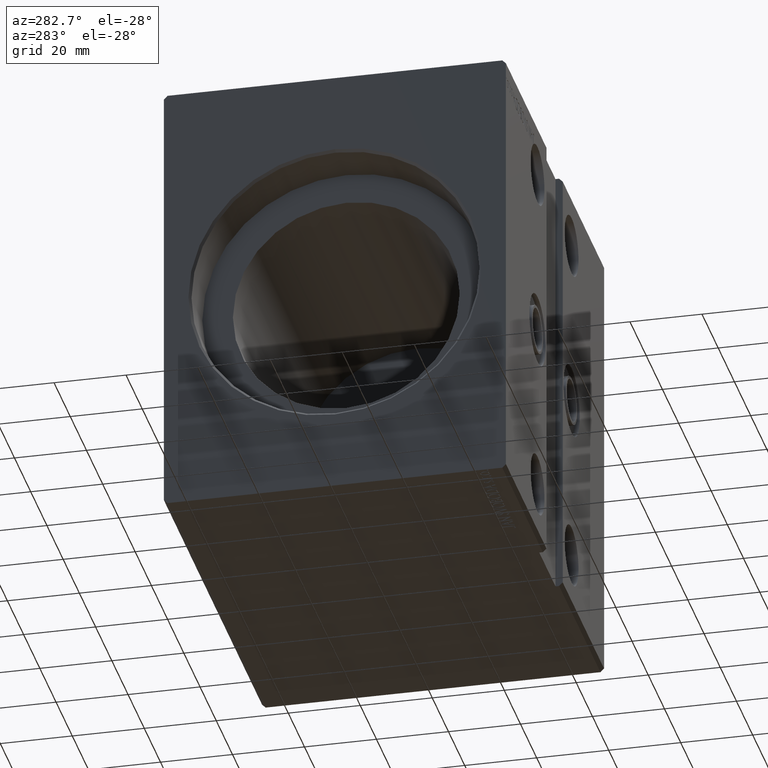
[diagram: clean part render]
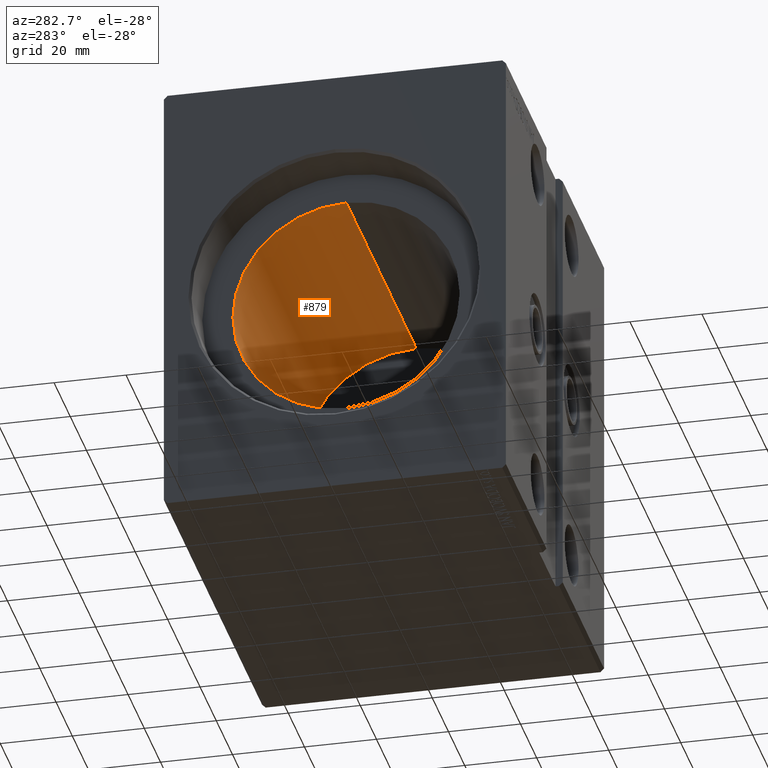
[diagram: same view with one face highlighted and labeled with its STEP entity id]
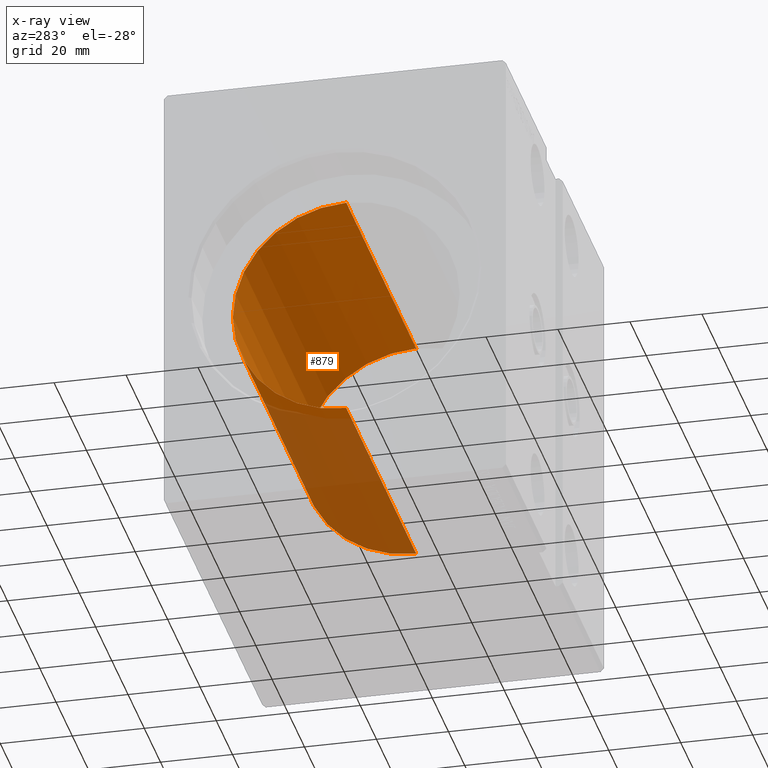
[diagram: x-ray of the same camera — body ghosted, the highlighted face saturated]
A machine part, auxiliary view. The second image highlights one B-rep face of the part: STEP entity #879.
The next image is the same camera in x-ray: the body ghosted, the highlighted face saturated — about 30% of this face is hidden behind the body in this view.
In plain terms, the highlighted cylindrical surface (partial cylindrical patch) has radius 31.5 mm, axis along (-1, -0, -0).
Its self-contained STEP definition (entity closure, byte-faithful):
#16 = FACE_OUTER_BOUND ( 'NONE', #1546, .T. ) ;
#444 = CARTESIAN_POINT ( 'NONE',  ( 13.99999999999999822, 3.857637417314162689E-15, -31.50000000000000000 ) ) ;
#879 = ADVANCED_FACE ( 'NONE', ( #16 ), #21974, .F. ) ;
#955 = VECTOR ( 'NONE', #4658, 1000.000000000000000 ) ;
#1546 = EDGE_LOOP ( 'NONE', ( #6393, #13335, #21484, #41089 ) ) ;
#3040 = VERTEX_POINT ( 'NONE', #444 ) ;
#3406 = VERTEX_POINT ( 'NONE', #30152 ) ;
#3945 = EDGE_CURVE ( 'NONE', #3406, #4947, #7035, .T. ) ;
#4174 = VECTOR ( 'NONE', #13836, 1000.000000000000000 ) ;
#4658 = DIRECTION ( 'NONE',  ( -1.000000000000000000, -0.000000000000000000, -0.000000000000000000 ) ) ;
#4947 = VERTEX_POINT ( 'NONE', #11759 ) ;
#6393 = ORIENTED_EDGE ( 'NONE', *, *, #16598, .F. ) ;
#6538 = DIRECTION ( 'NONE',  ( 0.000000000000000000, 0.000000000000000000, 1.000000000000000000 ) ) ;
#7035 = LINE ( 'NONE', #20010, #4174 ) ;
#9002 = CARTESIAN_POINT ( 'NONE',  ( 100.2000000000000028, 0.000000000000000000, 0.000000000000000000 ) ) ;
#11669 = CARTESIAN_POINT ( 'NONE',  ( 100.2000000000000028, 3.857637417314162689E-15, -31.50000000000000000 ) ) ;
#11759 = CARTESIAN_POINT ( 'NONE',  ( 13.99999999999999822, 0.000000000000000000, 31.50000000000000000 ) ) ;
#13335 = ORIENTED_EDGE ( 'NONE', *, *, #28069, .F. ) ;
#13836 = DIRECTION ( 'NONE',  ( -1.000000000000000000, -0.000000000000000000, -0.000000000000000000 ) ) ;
#16220 = AXIS2_PLACEMENT_3D ( 'NONE', #40590, #18057, #37809 ) ;
#16598 = EDGE_CURVE ( 'NONE', #21262, #3040, #36752, .T. ) ;
#17013 = AXIS2_PLACEMENT_3D ( 'NONE', #9002, #34306, #34929 ) ;
#18057 = DIRECTION ( 'NONE',  ( -1.000000000000000000, 0.000000000000000000, 0.000000000000000000 ) ) ;
#20010 = CARTESIAN_POINT ( 'NONE',  ( 100.2000000000000028, 0.000000000000000000, 31.50000000000000000 ) ) ;
#21262 = VERTEX_POINT ( 'NONE', #22477 ) ;
#21484 = ORIENTED_EDGE ( 'NONE', *, *, #3945, .T. ) ;
#21974 = CYLINDRICAL_SURFACE ( 'NONE', #17013, 31.50000000000000000 ) ;
#22477 = CARTESIAN_POINT ( 'NONE',  ( 100.2000000000000028, 3.857637417314162689E-15, -31.50000000000000000 ) ) ;
#22502 = CARTESIAN_POINT ( 'NONE',  ( 100.2000000000000028, 0.000000000000000000, 0.000000000000000000 ) ) ;
#28069 = EDGE_CURVE ( 'NONE', #3406, #21262, #36485, .T. ) ;
#28904 = EDGE_CURVE ( 'NONE', #4947, #3040, #41308, .T. ) ;
#30152 = CARTESIAN_POINT ( 'NONE',  ( 100.2000000000000028, 0.000000000000000000, 31.50000000000000000 ) ) ;
#34306 = DIRECTION ( 'NONE',  ( -1.000000000000000000, -0.000000000000000000, -0.000000000000000000 ) ) ;
#34929 = DIRECTION ( 'NONE',  ( 0.000000000000000000, 0.000000000000000000, 1.000000000000000000 ) ) ;
#35662 = DIRECTION ( 'NONE',  ( -1.000000000000000000, 0.000000000000000000, 0.000000000000000000 ) ) ;
#36485 = CIRCLE ( 'NONE', #39216, 31.50000000000000000 ) ;
#36752 = LINE ( 'NONE', #11669, #955 ) ;
#37809 = DIRECTION ( 'NONE',  ( 0.000000000000000000, 0.000000000000000000, 1.000000000000000000 ) ) ;
#39216 = AXIS2_PLACEMENT_3D ( 'NONE', #22502, #35662, #6538 ) ;
#40590 = CARTESIAN_POINT ( 'NONE',  ( 13.99999999999999822, 0.000000000000000000, 0.000000000000000000 ) ) ;
#41089 = ORIENTED_EDGE ( 'NONE', *, *, #28904, .T. ) ;
#41308 = CIRCLE ( 'NONE', #16220, 31.50000000000000000 ) ;